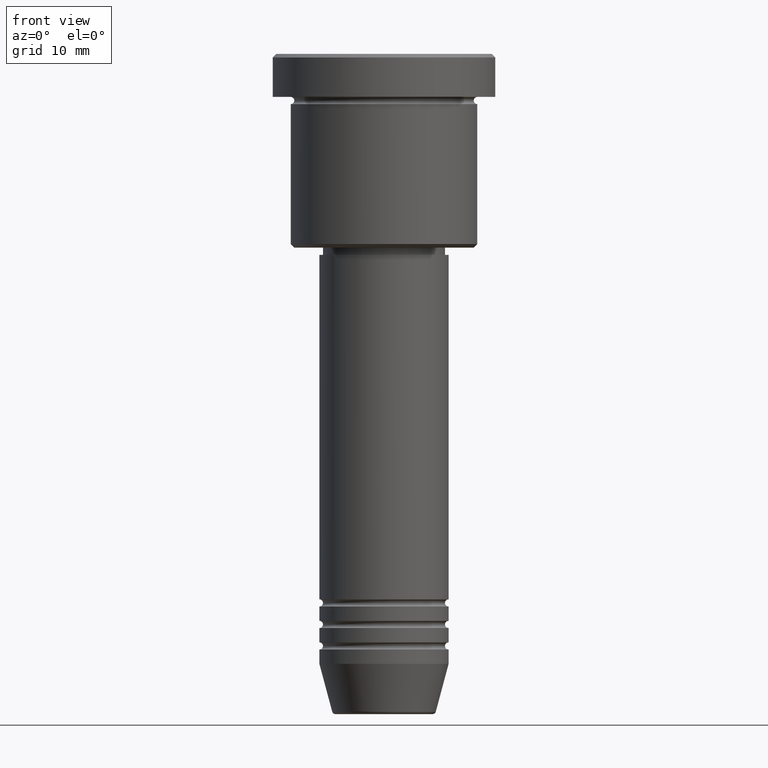
[diagram: clean part render]
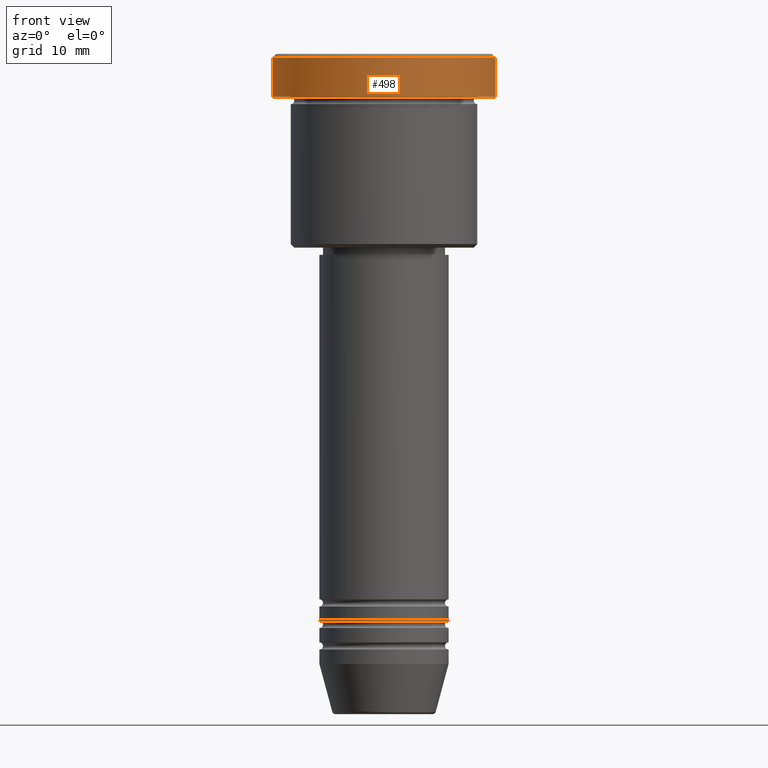
[diagram: same view with one face highlighted and labeled with its STEP entity id]
A machine part, front view. The second image highlights one B-rep face of the part: STEP entity #498.
In plain terms, the highlighted cylindrical surface (partial cylindrical patch) has radius 15.5 mm, axis along (-0, -0, 1).
Its self-contained STEP definition (entity closure, byte-faithful):
#29 = VECTOR ( 'NONE', #730, 1000.000000000000000 ) ;
#34 = ORIENTED_EDGE ( 'NONE', *, *, #140, .T. ) ;
#59 = DIRECTION ( 'NONE',  ( -0.000000000000000000, -0.000000000000000000, 1.000000000000000000 ) ) ;
#68 = CARTESIAN_POINT ( 'NONE',  ( 0.000000000000000000, 0.000000000000000000, 0.000000000000000000 ) ) ;
#70 = CARTESIAN_POINT ( 'NONE',  ( -15.50000000000000000, 1.898202538678397557E-15, -5.999999999999995559 ) ) ;
#106 = DIRECTION ( 'NONE',  ( 1.000000000000000000, 0.000000000000000000, 0.000000000000000000 ) ) ;
#131 = CIRCLE ( 'NONE', #255, 15.50000000000000000 ) ;
#140 = EDGE_CURVE ( 'NONE', #987, #1048, #1141, .T. ) ;
#152 = CYLINDRICAL_SURFACE ( 'NONE', #1028, 15.50000000000000000 ) ;
#255 = AXIS2_PLACEMENT_3D ( 'NONE', #417, #634, #106 ) ;
#305 = EDGE_CURVE ( 'NONE', #991, #987, #899, .T. ) ;
#310 = CARTESIAN_POINT ( 'NONE',  ( 15.50000000000000000, 0.000000000000000000, -0.4999999999999987232 ) ) ;
#320 = FACE_OUTER_BOUND ( 'NONE', #1166, .T. ) ;
#321 = LINE ( 'NONE', #1066, #429 ) ;
#338 = DIRECTION ( 'NONE',  ( 1.000000000000000000, 0.000000000000000000, 0.000000000000000000 ) ) ;
#417 = CARTESIAN_POINT ( 'NONE',  ( 0.000000000000000000, 0.000000000000000000, -5.999999999999995559 ) ) ;
#429 = VECTOR ( 'NONE', #59, 1000.000000000000000 ) ;
#498 = ADVANCED_FACE ( 'NONE', ( #320 ), #152, .T. ) ;
#516 = DIRECTION ( 'NONE',  ( -0.000000000000000000, -0.000000000000000000, 1.000000000000000000 ) ) ;
#620 = AXIS2_PLACEMENT_3D ( 'NONE', #974, #1159, #338 ) ;
#633 = CARTESIAN_POINT ( 'NONE',  ( 15.50000000000000000, 0.000000000000000000, 0.000000000000000000 ) ) ;
#634 = DIRECTION ( 'NONE',  ( -0.000000000000000000, -0.000000000000000000, 1.000000000000000000 ) ) ;
#649 = VERTEX_POINT ( 'NONE', #70 ) ;
#650 = ORIENTED_EDGE ( 'NONE', *, *, #733, .T. ) ;
#730 = DIRECTION ( 'NONE',  ( -0.000000000000000000, -0.000000000000000000, 1.000000000000000000 ) ) ;
#733 = EDGE_CURVE ( 'NONE', #649, #991, #131, .T. ) ;
#745 = DIRECTION ( 'NONE',  ( 1.000000000000000000, 0.000000000000000000, 0.000000000000000000 ) ) ;
#874 = CARTESIAN_POINT ( 'NONE',  ( -15.50000000000000000, 1.898202538678397557E-15, -0.4999999999999987232 ) ) ;
#899 = LINE ( 'NONE', #633, #29 ) ;
#907 = ORIENTED_EDGE ( 'NONE', *, *, #1078, .F. ) ;
#931 = ORIENTED_EDGE ( 'NONE', *, *, #305, .T. ) ;
#945 = CARTESIAN_POINT ( 'NONE',  ( 15.50000000000000000, 0.000000000000000000, -5.999999999999995559 ) ) ;
#974 = CARTESIAN_POINT ( 'NONE',  ( 0.000000000000000000, 0.000000000000000000, -0.4999999999999987232 ) ) ;
#987 = VERTEX_POINT ( 'NONE', #310 ) ;
#991 = VERTEX_POINT ( 'NONE', #945 ) ;
#1028 = AXIS2_PLACEMENT_3D ( 'NONE', #68, #516, #745 ) ;
#1048 = VERTEX_POINT ( 'NONE', #874 ) ;
#1066 = CARTESIAN_POINT ( 'NONE',  ( -15.50000000000000000, 1.898202538678397557E-15, 0.000000000000000000 ) ) ;
#1078 = EDGE_CURVE ( 'NONE', #649, #1048, #321, .T. ) ;
#1141 = CIRCLE ( 'NONE', #620, 15.50000000000000000 ) ;
#1159 = DIRECTION ( 'NONE',  ( 0.000000000000000000, 0.000000000000000000, -1.000000000000000000 ) ) ;
#1166 = EDGE_LOOP ( 'NONE', ( #907, #650, #931, #34 ) ) ;